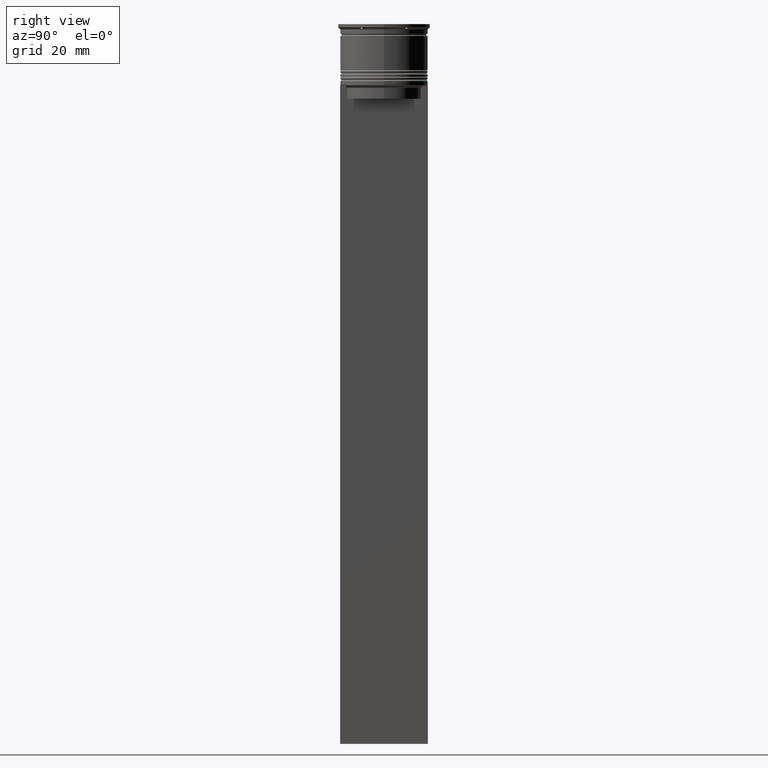
[diagram: clean part render]
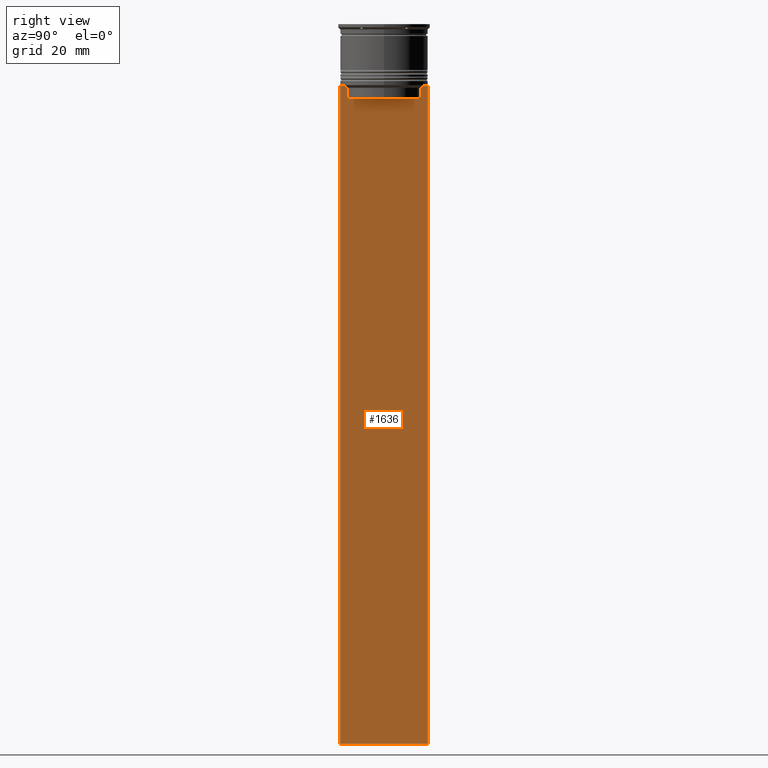
[diagram: same view with one face highlighted and labeled with its STEP entity id]
A machine part, right view. The second image highlights one B-rep face of the part: STEP entity #1636.
In plain terms, the highlighted planar face has unit normal (-1, 0, 0).
Its self-contained STEP definition (entity closure, byte-faithful):
#19 = VECTOR ( 'NONE', #2639, 1000.000000000000000 ) ;
#70 = CARTESIAN_POINT ( 'NONE',  ( 0.5000000000000000000, 9.999999999999998224, -14.00000000000000178 ) ) ;
#97 = VERTEX_POINT ( 'NONE', #649 ) ;
#140 = CARTESIAN_POINT ( 'NONE',  ( 0.5000000000000000000, 8.552060201981378285, -14.33334167021640582 ) ) ;
#165 = DIRECTION ( 'NONE',  ( -1.000000000000000000, 0.000000000000000000, 0.000000000000000000 ) ) ;
#253 = LINE ( 'NONE', #2501, #881 ) ;
#344 = CARTESIAN_POINT ( 'NONE',  ( 0.5000000000000000000, 8.385105843100616241, -14.50000000000000000 ) ) ;
#364 = VERTEX_POINT ( 'NONE', #1789 ) ;
#376 = EDGE_CURVE ( 'NONE', #989, #2203, #1589, .T. ) ;
#380 = DIRECTION ( 'NONE',  ( 0.000000000000000000, 1.000000000000000000, 0.000000000000000000 ) ) ;
#381 = EDGE_CURVE ( 'NONE', #1501, #1025, #2398, .T. ) ;
#401 = CARTESIAN_POINT ( 'NONE',  ( 0.5000000000000000000, -8.885943956609230199, -14.00000000000000178 ) ) ;
#476 = VECTOR ( 'NONE', #2505, 1000.000000000000000 ) ;
#482 = DIRECTION ( 'NONE',  ( 0.000000000000000000, 0.000000000000000000, -1.000000000000000000 ) ) ;
#512 = CARTESIAN_POINT ( 'NONE',  ( 0.5000000000000000000, 8.385105843100616241, 0.000000000000000000 ) ) ;
#532 = VERTEX_POINT ( 'NONE', #1842 ) ;
#551 = CARTESIAN_POINT ( 'NONE',  ( 0.5000000000000000000, -10.00000000000000178, -14.00000000000000178 ) ) ;
#603 = CARTESIAN_POINT ( 'NONE',  ( 0.5000000000000000000, -8.385105843100616241, -14.50000000000000000 ) ) ;
#627 = VECTOR ( 'NONE', #1349, 1000.000000000000000 ) ;
#649 = CARTESIAN_POINT ( 'NONE',  ( 0.5000000000000000000, -8.385105843100616241, -17.00000000000000000 ) ) ;
#654 = EDGE_CURVE ( 'NONE', #2010, #989, #860, .T. ) ;
#700 = ORIENTED_EDGE ( 'NONE', *, *, #376, .T. ) ;
#744 = EDGE_CURVE ( 'NONE', #364, #532, #1723, .T. ) ;
#750 = CARTESIAN_POINT ( 'NONE',  ( 0.5000000000000000000, 8.719005771582347464, -14.16667453442325453 ) ) ;
#771 = DIRECTION ( 'NONE',  ( 0.000000000000000000, 0.000000000000000000, -1.000000000000000000 ) ) ;
#773 = PLANE ( 'NONE',  #2131 ) ;
#814 = ORIENTED_EDGE ( 'NONE', *, *, #654, .T. ) ;
#831 = ORIENTED_EDGE ( 'NONE', *, *, #1436, .T. ) ;
#845 = CARTESIAN_POINT ( 'NONE',  ( 0.5000000000000000000, 8.885943956609230199, -14.00000000000000178 ) ) ;
#856 = EDGE_LOOP ( 'NONE', ( #814, #700, #2619, #831, #1970, #2066, #2594, #910, #1859, #2653, #1323, #1473 ) ) ;
#860 = LINE ( 'NONE', #1699, #1234 ) ;
#881 = VECTOR ( 'NONE', #1262, 1000.000000000000000 ) ;
#902 = CARTESIAN_POINT ( 'NONE',  ( 0.5000000000000000000, 8.400000000000003908, -17.00000000000000000 ) ) ;
#910 = ORIENTED_EDGE ( 'NONE', *, *, #2584, .T. ) ;
#932 = EDGE_CURVE ( 'NONE', #2356, #1501, #1074, .T. ) ;
#934 = LINE ( 'NONE', #902, #1836 ) ;
#960 = LINE ( 'NONE', #1163, #1222 ) ;
#989 = VERTEX_POINT ( 'NONE', #845 ) ;
#1020 = CARTESIAN_POINT ( 'NONE',  ( 0.5000000000000000000, -10.00000000000000178, 6.024984394500783047 ) ) ;
#1025 = VERTEX_POINT ( 'NONE', #1821 ) ;
#1074 = B_SPLINE_CURVE_WITH_KNOTS ( 'NONE', 3,
 ( #603, #1243, #2453, #401 ),
 .UNSPECIFIED., .F., .F.,
 ( 4, 4 ),
 ( 0.03898465126933130243, 0.03969388910599658260 ),
 .UNSPECIFIED. ) ;
#1076 = LINE ( 'NONE', #1118, #476 ) ;
#1090 = EDGE_CURVE ( 'NONE', #97, #2356, #253, .T. ) ;
#1118 = CARTESIAN_POINT ( 'NONE',  ( 0.5000000000000000000, -10.00000000000000178, -14.00000000000000178 ) ) ;
#1163 = CARTESIAN_POINT ( 'NONE',  ( 0.5000000000000000000, -10.00000000000000178, -14.00000000000000178 ) ) ;
#1179 = LINE ( 'NONE', #2236, #2417 ) ;
#1222 = VECTOR ( 'NONE', #1613, 1000.000000000000000 ) ;
#1234 = VECTOR ( 'NONE', #1687, 1000.000000000000000 ) ;
#1243 = CARTESIAN_POINT ( 'NONE',  ( 0.5000000000000000000, -8.552060194457773434, -14.33334167772667023 ) ) ;
#1262 = DIRECTION ( 'NONE',  ( -0.000000000000000000, -0.000000000000000000, 1.000000000000000000 ) ) ;
#1319 = CARTESIAN_POINT ( 'NONE',  ( 0.5000000000000000000, -10.00000000000000178, 6.024984394500783047 ) ) ;
#1323 = ORIENTED_EDGE ( 'NONE', *, *, #2044, .F. ) ;
#1349 = DIRECTION ( 'NONE',  ( 0.000000000000000000, 0.000000000000000000, -1.000000000000000000 ) ) ;
#1436 = EDGE_CURVE ( 'NONE', #1692, #97, #934, .T. ) ;
#1473 = ORIENTED_EDGE ( 'NONE', *, *, #2475, .T. ) ;
#1497 = EDGE_CURVE ( 'NONE', #2203, #1692, #1944, .T. ) ;
#1501 = VERTEX_POINT ( 'NONE', #2590 ) ;
#1589 = B_SPLINE_CURVE_WITH_KNOTS ( 'NONE', 3,
 ( #2188, #750, #140, #344 ),
 .UNSPECIFIED., .F., .F.,
 ( 4, 4 ),
 ( 0.01511546479386908018, 0.01582316445439079997 ),
 .UNSPECIFIED. ) ;
#1613 = DIRECTION ( 'NONE',  ( 0.000000000000000000, -1.000000000000000000, 0.000000000000000000 ) ) ;
#1633 = DIRECTION ( 'NONE',  ( 0.000000000000000000, 0.000000000000000000, 1.000000000000000000 ) ) ;
#1636 = ADVANCED_FACE ( 'NONE', ( #2620 ), #773, .F. ) ;
#1674 = CARTESIAN_POINT ( 'NONE',  ( 0.5000000000000000000, 8.385105843100616241, -14.50000000000000000 ) ) ;
#1687 = DIRECTION ( 'NONE',  ( 0.000000000000000000, -1.000000000000000000, 0.000000000000000000 ) ) ;
#1692 = VERTEX_POINT ( 'NONE', #2262 ) ;
#1699 = CARTESIAN_POINT ( 'NONE',  ( 0.5000000000000000000, -10.00000000000000178, -14.00000000000000178 ) ) ;
#1723 = LINE ( 'NONE', #1319, #2094 ) ;
#1725 = DIRECTION ( 'NONE',  ( 0.000000000000000000, -1.000000000000000000, 0.000000000000000000 ) ) ;
#1789 = CARTESIAN_POINT ( 'NONE',  ( 0.5000000000000000000, -10.00000000000000178, -14.00000000000000178 ) ) ;
#1821 = CARTESIAN_POINT ( 'NONE',  ( 0.5000000000000000000, -9.887365675446622149, -14.00000000000000178 ) ) ;
#1836 = VECTOR ( 'NONE', #1725, 1000.000000000000000 ) ;
#1842 = CARTESIAN_POINT ( 'NONE',  ( 0.5000000000000000000, -10.00000000000000178, -163.9999999999999716 ) ) ;
#1859 = ORIENTED_EDGE ( 'NONE', *, *, #744, .T. ) ;
#1896 = VECTOR ( 'NONE', #771, 1000.000000000000000 ) ;
#1908 = VERTEX_POINT ( 'NONE', #1940 ) ;
#1940 = CARTESIAN_POINT ( 'NONE',  ( 0.5000000000000000000, 9.999999999999998224, -163.9999999999999716 ) ) ;
#1944 = LINE ( 'NONE', #512, #627 ) ;
#1953 = VERTEX_POINT ( 'NONE', #70 ) ;
#1970 = ORIENTED_EDGE ( 'NONE', *, *, #1090, .T. ) ;
#2010 = VERTEX_POINT ( 'NONE', #2402 ) ;
#2017 = LINE ( 'NONE', #2645, #1896 ) ;
#2044 = EDGE_CURVE ( 'NONE', #1953, #1908, #2017, .T. ) ;
#2066 = ORIENTED_EDGE ( 'NONE', *, *, #932, .T. ) ;
#2094 = VECTOR ( 'NONE', #482, 1000.000000000000000 ) ;
#2096 = EDGE_CURVE ( 'NONE', #532, #1908, #1179, .T. ) ;
#2131 = AXIS2_PLACEMENT_3D ( 'NONE', #1020, #165, #1633 ) ;
#2188 = CARTESIAN_POINT ( 'NONE',  ( 0.5000000000000000000, 8.885943956609230199, -14.00000000000000178 ) ) ;
#2203 = VERTEX_POINT ( 'NONE', #1674 ) ;
#2236 = CARTESIAN_POINT ( 'NONE',  ( 0.5000000000000000000, -10.00000000000000178, -163.9999999999999716 ) ) ;
#2262 = CARTESIAN_POINT ( 'NONE',  ( 0.5000000000000000000, 8.385105843100616241, -17.00000000000000000 ) ) ;
#2356 = VERTEX_POINT ( 'NONE', #2395 ) ;
#2395 = CARTESIAN_POINT ( 'NONE',  ( 0.5000000000000000000, -8.385105843100616241, -14.50000000000000000 ) ) ;
#2398 = LINE ( 'NONE', #551, #19 ) ;
#2402 = CARTESIAN_POINT ( 'NONE',  ( 0.5000000000000000000, 9.887365675446622149, -14.00000000000000178 ) ) ;
#2417 = VECTOR ( 'NONE', #380, 1000.000000000000000 ) ;
#2453 = CARTESIAN_POINT ( 'NONE',  ( 0.5000000000000000000, -8.719005764482790966, -14.16667454151159689 ) ) ;
#2475 = EDGE_CURVE ( 'NONE', #1953, #2010, #1076, .T. ) ;
#2501 = CARTESIAN_POINT ( 'NONE',  ( 0.5000000000000000000, -8.385105843100616241, 0.000000000000000000 ) ) ;
#2505 = DIRECTION ( 'NONE',  ( 0.000000000000000000, -1.000000000000000000, 0.000000000000000000 ) ) ;
#2584 = EDGE_CURVE ( 'NONE', #1025, #364, #960, .T. ) ;
#2590 = CARTESIAN_POINT ( 'NONE',  ( 0.5000000000000000000, -8.885943956609230199, -14.00000000000000178 ) ) ;
#2594 = ORIENTED_EDGE ( 'NONE', *, *, #381, .T. ) ;
#2619 = ORIENTED_EDGE ( 'NONE', *, *, #1497, .T. ) ;
#2620 = FACE_OUTER_BOUND ( 'NONE', #856, .T. ) ;
#2639 = DIRECTION ( 'NONE',  ( 0.000000000000000000, -1.000000000000000000, 0.000000000000000000 ) ) ;
#2645 = CARTESIAN_POINT ( 'NONE',  ( 0.5000000000000000000, 9.999999999999998224, 6.024984394500783047 ) ) ;
#2653 = ORIENTED_EDGE ( 'NONE', *, *, #2096, .T. ) ;